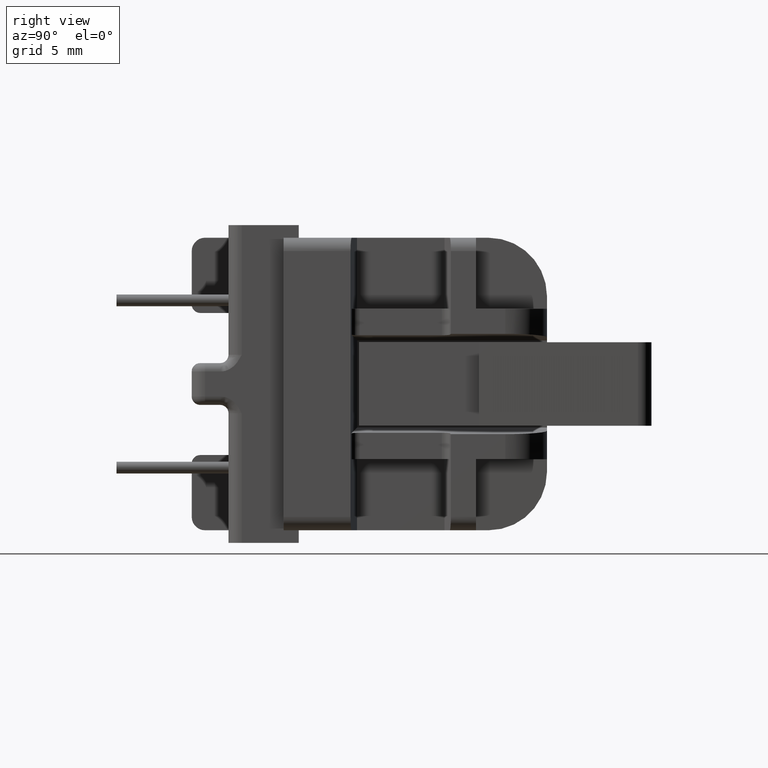
[diagram: clean part render]
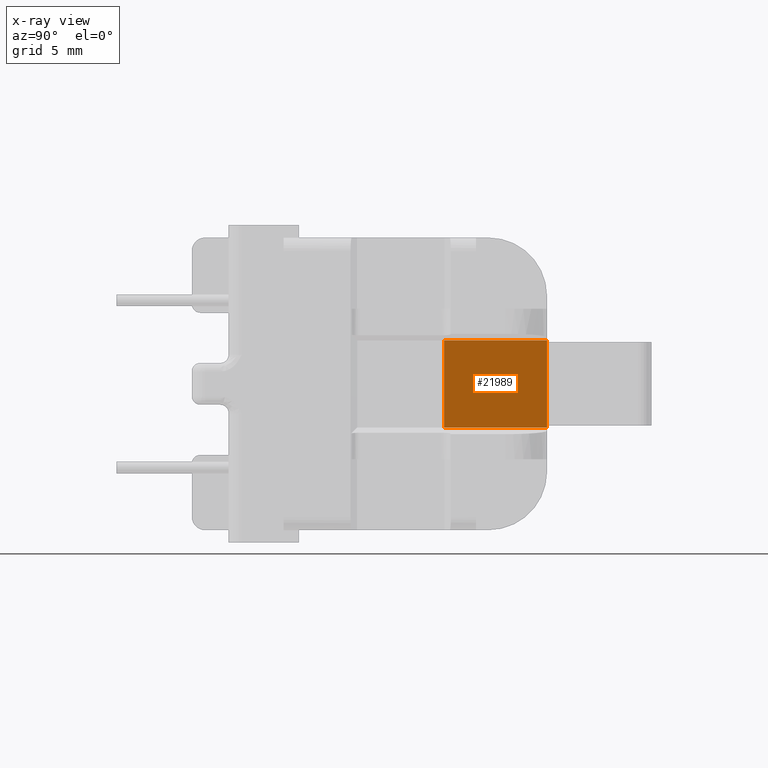
[diagram: x-ray — body ghosted, one internal face saturated and labeled with its STEP entity id]
A machine part, right view, then the same camera in x-ray: the body is ghosted and one INTERNAL B-rep face — a face not visible from any outside direction — is saturated and labeled: STEP entity #21989.
In plain terms, the highlighted planar face has unit normal (-1, -0, 0).
Its self-contained STEP definition (entity closure, byte-faithful):
#281 = CARTESIAN_POINT ( 'NONE',  ( -5.699999999999998401, 2.600000000000001421, -2.600000000000000089 ) ) ;
#1035 = DIRECTION ( 'NONE',  ( 1.270666161406801782E-16, -1.000000000000000000, 0.0000000000000000000 ) ) ;
#1344 = VECTOR ( 'NONE', #16012, 1000.000000000000000 ) ;
#1817 = CARTESIAN_POINT ( 'NONE',  ( -5.699999999999997513, 2.599999999999999645, 2.600000000000000533 ) ) ;
#2628 = FACE_OUTER_BOUND ( 'NONE', #19071, .T. ) ;
#5077 = VECTOR ( 'NONE', #14896, 1000.000000000000000 ) ;
#5270 = VECTOR ( 'NONE', #23082, 1000.000000000000000 ) ;
#6249 = VECTOR ( 'NONE', #13599, 1000.000000000000000 ) ;
#6796 = LINE ( 'NONE', #18606, #5077 ) ;
#7647 = ORIENTED_EDGE ( 'NONE', *, *, #19500, .T. ) ;
#8208 = LINE ( 'NONE', #13669, #6249 ) ;
#8540 = VERTEX_POINT ( 'NONE', #9875 ) ;
#8552 = ORIENTED_EDGE ( 'NONE', *, *, #13714, .T. ) ;
#8786 = CARTESIAN_POINT ( 'NONE',  ( -5.699999999999998401, 8.750000000000000000, -2.600000000000000089 ) ) ;
#9806 = PLANE ( 'NONE',  #21811 ) ;
#9875 = CARTESIAN_POINT ( 'NONE',  ( -5.699999999999998401, 2.600000000000001421, 2.600000000000000089 ) ) ;
#10929 = LINE ( 'NONE', #14331, #5270 ) ;
#11027 = VERTEX_POINT ( 'NONE', #281 ) ;
#11040 = ORIENTED_EDGE ( 'NONE', *, *, #16594, .F. ) ;
#11822 = CARTESIAN_POINT ( 'NONE',  ( -5.699999999999998401, 11.05207895405218466, 3.000000000000000000 ) ) ;
#13599 = DIRECTION ( 'NONE',  ( -0.0000000000000000000, 1.000000000000000000, -0.0000000000000000000 ) ) ;
#13669 = CARTESIAN_POINT ( 'NONE',  ( -5.699999999999998401, -11.30000000000000071, 2.600000000000000089 ) ) ;
#13714 = EDGE_CURVE ( 'NONE', #11027, #8540, #19942, .T. ) ;
#14331 = CARTESIAN_POINT ( 'NONE',  ( -5.699999999999998401, -11.30000000000000071, -2.600000000000000089 ) ) ;
#14896 = DIRECTION ( 'NONE',  ( 0.0000000000000000000, 0.0000000000000000000, -1.000000000000000000 ) ) ;
#15293 = DIRECTION ( 'NONE',  ( -1.000000000000000000, -1.270666161406801782E-16, 0.0000000000000000000 ) ) ;
#16012 = DIRECTION ( 'NONE',  ( 5.298688510388737190E-32, -4.170008355713480109E-16, 1.000000000000000000 ) ) ;
#16016 = ORIENTED_EDGE ( 'NONE', *, *, #19331, .T. ) ;
#16594 = EDGE_CURVE ( 'NONE', #11027, #22072, #10929, .T. ) ;
#18606 = CARTESIAN_POINT ( 'NONE',  ( -5.699999999999998401, 8.750000000000000000, 8.750000000000000000 ) ) ;
#19007 = VERTEX_POINT ( 'NONE', #22039 ) ;
#19071 = EDGE_LOOP ( 'NONE', ( #7647, #11040, #8552, #16016 ) ) ;
#19331 = EDGE_CURVE ( 'NONE', #8540, #19007, #8208, .T. ) ;
#19500 = EDGE_CURVE ( 'NONE', #19007, #22072, #6796, .T. ) ;
#19942 = LINE ( 'NONE', #1817, #1344 ) ;
#21811 = AXIS2_PLACEMENT_3D ( 'NONE', #11822, #15293, #1035 ) ;
#21989 = ADVANCED_FACE ( 'NONE', ( #2628 ), #9806, .T. ) ;
#22039 = CARTESIAN_POINT ( 'NONE',  ( -5.699999999999998401, 8.750000000000000000, 2.600000000000000089 ) ) ;
#22072 = VERTEX_POINT ( 'NONE', #8786 ) ;
#23082 = DIRECTION ( 'NONE',  ( -0.0000000000000000000, 1.000000000000000000, -0.0000000000000000000 ) ) ;